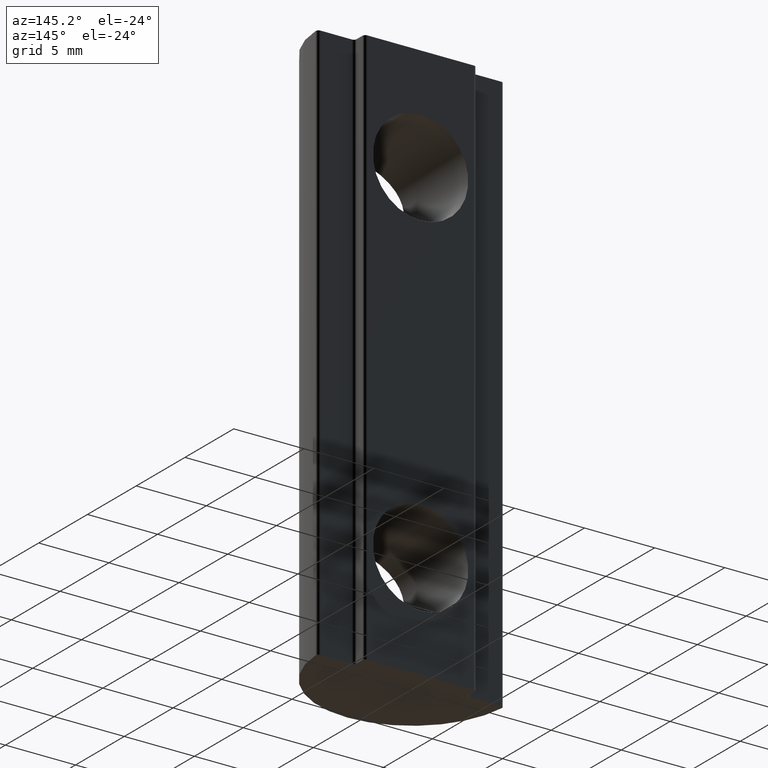
[diagram: clean part render]
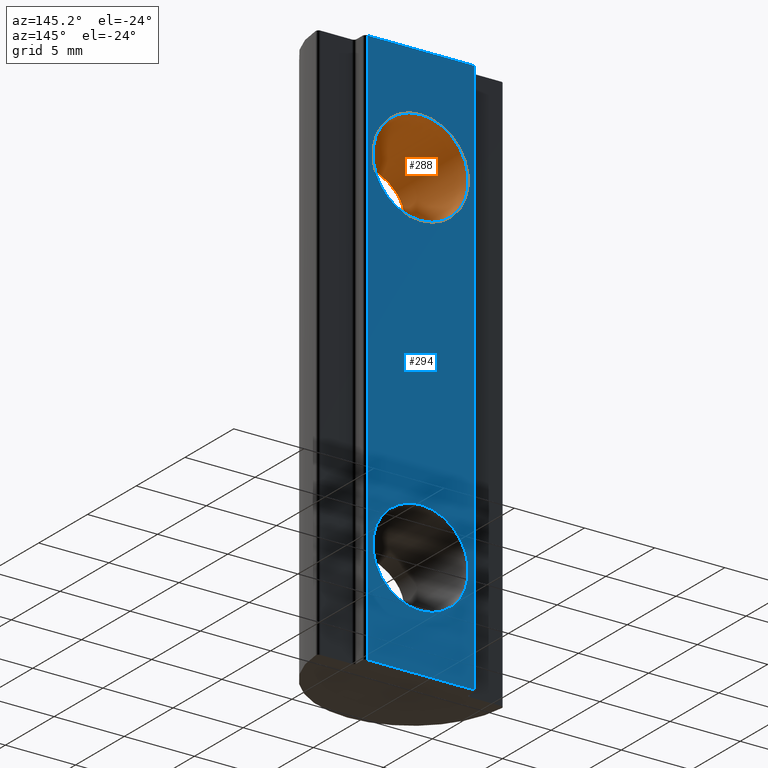
[diagram: same view with the hole feature highlighted: cylindrical wall and planar end face, labeled with their STEP entity ids]
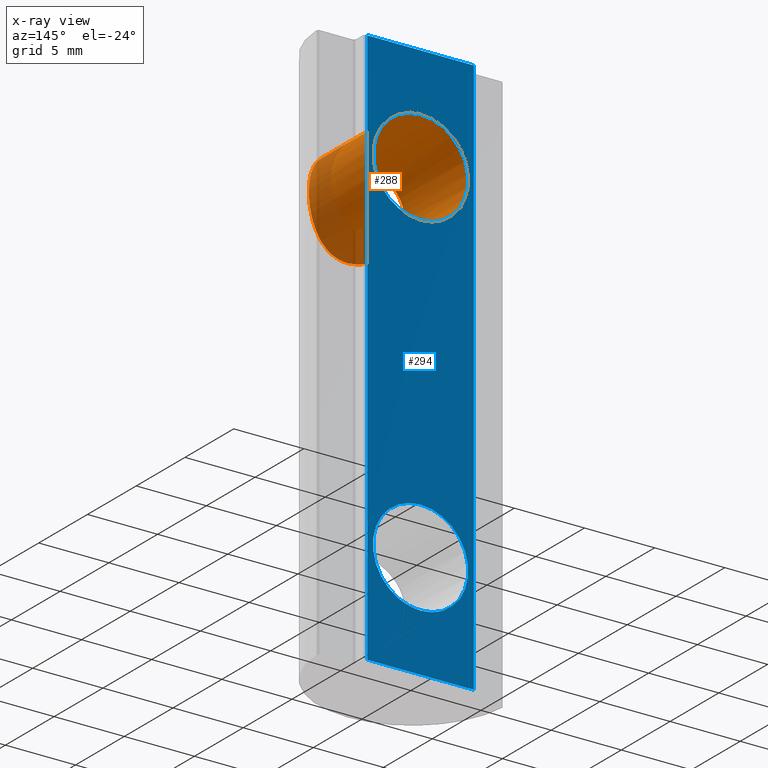
[diagram: x-ray of the same camera — body ghosted, the hole faces saturated]
A machine part, auxiliary view. The highlighted faces form one hole feature of diameter 6.8 mm: the cylindrical wall (entity #288, orange) and its adjacent planar end face (entity #294, blue) — they share a circular edge in the B-rep.
The next image is the same camera in x-ray (body ghosted, the hole faces saturated) — the bore reads through the body.
Wall:
#69=FACE_BOUND('',#108,.T.);
#75=CIRCLE('',#307,3.4);
#91=FACE_OUTER_BOUND('',#107,.T.);
#107=EDGE_LOOP('',(#199));
#108=EDGE_LOOP('',(#200));
#129=B_SPLINE_CURVE_WITH_KNOTS('',3,(#429,#430,#431,#432,#433,#434,#435,
#436,#437,#438,#439,#440,#441,#442,#443,#444,#445,#446,#447,#448,#449,#450,
#451,#452,#453,#454,#455,#456,#457,#458,#459,#460,#461,#462),
 .UNSPECIFIED.,.T.,.F.,(4,2,2,2,2,2,2,2,2,2,2,2,2,2,2,2,4),(0.,0.131027554840982,
0.262055109681964,0.392687474751269,0.523319839820575,0.65395220488988,
0.784584569959185,0.915612124800167,1.04663967964115,1.17766723448213,1.30869478932311,
1.43932715439242,1.56995951946172,1.70059188453103,1.83122424960033,1.96225180444132,
2.0932793592823),.UNSPECIFIED.);
#131=VERTEX_POINT('',#428);
#132=VERTEX_POINT('',#463);
#159=EDGE_CURVE('',#131,#131,#129,.T.);
#160=EDGE_CURVE('',#132,#132,#75,.T.);
#199=ORIENTED_EDGE('',*,*,#159,.F.);
#200=ORIENTED_EDGE('',*,*,#160,.T.);
#279=CYLINDRICAL_SURFACE('',#306,3.4);
#288=ADVANCED_FACE('',(#91,#69),#279,.F.);
#306=AXIS2_PLACEMENT_3D('',#427,#340,#341);
#307=AXIS2_PLACEMENT_3D('',#464,#342,#343);
#340=DIRECTION('center_axis',(0.,1.,0.));
#341=DIRECTION('ref_axis',(0.,0.,1.));
#342=DIRECTION('center_axis',(0.,1.,0.));
#343=DIRECTION('ref_axis',(0.,0.,1.));
#427=CARTESIAN_POINT('Origin',(0.,1.,32.5));
#428=CARTESIAN_POINT('',(4.16379924307195E-16,-6.5,29.1));
#429=CARTESIAN_POINT('Ctrl Pts',(3.4,-5.56539457715891,32.5));
#430=CARTESIAN_POINT('Ctrl Pts',(3.4,-5.56539457715891,32.0632414838634));
#431=CARTESIAN_POINT('Ctrl Pts',(3.31102816126517,-5.62077284062291,31.6046937341527));
#432=CARTESIAN_POINT('Ctrl Pts',(2.96191687936118,-5.8074427995085,30.7703947402309));
#433=CARTESIAN_POINT('Ctrl Pts',(2.70201157560893,-5.93486926136199,30.3936854635404));
#434=CARTESIAN_POINT('Ctrl Pts',(2.10721287184094,-6.16543677489532,29.7988867597724));
#435=CARTESIAN_POINT('Ctrl Pts',(1.73020592601123,-6.28515870979323,29.5383254414694));
#436=CARTESIAN_POINT('Ctrl Pts',(0.894584413487754,-6.4533337686477,29.1886788089965));
#437=CARTESIAN_POINT('Ctrl Pts',(0.435441216897685,-6.5,29.1));
#438=CARTESIAN_POINT('Ctrl Pts',(-0.435441216897684,-6.5,29.1));
#439=CARTESIAN_POINT('Ctrl Pts',(-0.894584413487754,-6.4533337686477,29.1886788089965));
#440=CARTESIAN_POINT('Ctrl Pts',(-1.73020592601123,-6.28515870979323,29.5383254414694));
#441=CARTESIAN_POINT('Ctrl Pts',(-2.10721287184094,-6.16543677489532,29.7988867597724));
#442=CARTESIAN_POINT('Ctrl Pts',(-2.70201157560893,-5.93486926136199,30.3936854635404));
#443=CARTESIAN_POINT('Ctrl Pts',(-2.96191687936118,-5.8074427995085,30.7703947402309));
#444=CARTESIAN_POINT('Ctrl Pts',(-3.31102816126517,-5.62077284062291,31.6046937341527));
#445=CARTESIAN_POINT('Ctrl Pts',(-3.4,-5.56539457715891,32.0632414838634));
#446=CARTESIAN_POINT('Ctrl Pts',(-3.4,-5.56539457715891,32.9367585161366));
#447=CARTESIAN_POINT('Ctrl Pts',(-3.31102816126517,-5.62077284062291,33.3953062658473));
#448=CARTESIAN_POINT('Ctrl Pts',(-2.96191687936118,-5.8074427995085,34.2296052597691));
#449=CARTESIAN_POINT('Ctrl Pts',(-2.70201157560893,-5.93486926136199,34.6063145364596));
#450=CARTESIAN_POINT('Ctrl Pts',(-2.10721287184095,-6.16543677489532,35.2011132402276));
#451=CARTESIAN_POINT('Ctrl Pts',(-1.73020592601124,-6.28515870979322,35.4616745585306));
#452=CARTESIAN_POINT('Ctrl Pts',(-0.894584413487756,-6.4533337686477,35.8113211910035));
#453=CARTESIAN_POINT('Ctrl Pts',(-0.435441216897686,-6.5,35.9));
#454=CARTESIAN_POINT('Ctrl Pts',(0.435441216897683,-6.5,35.9));
#455=CARTESIAN_POINT('Ctrl Pts',(0.894584413487753,-6.4533337686477,35.8113211910035));
#456=CARTESIAN_POINT('Ctrl Pts',(1.73020592601123,-6.28515870979323,35.4616745585306));
#457=CARTESIAN_POINT('Ctrl Pts',(2.10721287184094,-6.16543677489532,35.2011132402276));
#458=CARTESIAN_POINT('Ctrl Pts',(2.70201157560893,-5.93486926136199,34.6063145364596));
#459=CARTESIAN_POINT('Ctrl Pts',(2.96191687936118,-5.8074427995085,34.2296052597691));
#460=CARTESIAN_POINT('Ctrl Pts',(3.31102816126517,-5.62077284062291,33.3953062658473));
#461=CARTESIAN_POINT('Ctrl Pts',(3.4,-5.56539457715891,32.9367585161366));
#462=CARTESIAN_POINT('Ctrl Pts',(3.4,-5.56539457715891,32.5));
#463=CARTESIAN_POINT('',(0.,1.,35.9));
#464=CARTESIAN_POINT('Origin',(0.,1.,32.5));
End face:
#20=PLANE('',#318);
#36=LINE('',#539,#58);
#37=LINE('',#541,#59);
#38=LINE('',#543,#60);
#39=LINE('',#544,#61);
#58=VECTOR('',#377,7.6);
#59=VECTOR('',#378,40.);
#60=VECTOR('',#379,7.6);
#61=VECTOR('',#380,40.);
#73=FACE_BOUND('',#118,.T.);
#74=FACE_BOUND('',#119,.T.);
#75=CIRCLE('',#307,3.4);
#76=CIRCLE('',#309,3.4);
#97=FACE_OUTER_BOUND('',#117,.T.);
#117=EDGE_LOOP('',(#221,#222,#223,#224));
#118=EDGE_LOOP('',(#225));
#119=EDGE_LOOP('',(#226));
#132=VERTEX_POINT('',#463);
#134=VERTEX_POINT('',#501);
#149=VERTEX_POINT('',#537);
#150=VERTEX_POINT('',#538);
#151=VERTEX_POINT('',#540);
#152=VERTEX_POINT('',#542);
#160=EDGE_CURVE('',#132,#132,#75,.T.);
#162=EDGE_CURVE('',#134,#134,#76,.T.);
#178=EDGE_CURVE('',#149,#150,#36,.T.);
#179=EDGE_CURVE('',#150,#151,#37,.T.);
#180=EDGE_CURVE('',#152,#151,#38,.T.);
#181=EDGE_CURVE('',#152,#149,#39,.T.);
#221=ORIENTED_EDGE('',*,*,#178,.T.);
#222=ORIENTED_EDGE('',*,*,#179,.T.);
#223=ORIENTED_EDGE('',*,*,#180,.F.);
#224=ORIENTED_EDGE('',*,*,#181,.T.);
#225=ORIENTED_EDGE('',*,*,#160,.F.);
#226=ORIENTED_EDGE('',*,*,#162,.F.);
#294=ADVANCED_FACE('',(#97,#73,#74),#20,.F.);
#307=AXIS2_PLACEMENT_3D('',#464,#342,#343);
#309=AXIS2_PLACEMENT_3D('',#502,#346,#347);
#318=AXIS2_PLACEMENT_3D('',#536,#375,#376);
#342=DIRECTION('center_axis',(0.,1.,0.));
#343=DIRECTION('ref_axis',(0.,0.,1.));
#346=DIRECTION('center_axis',(0.,1.,0.));
#347=DIRECTION('ref_axis',(0.,0.,1.));
#375=DIRECTION('center_axis',(0.,-1.,0.));
#376=DIRECTION('ref_axis',(0.,0.,-1.));
#377=DIRECTION('',(-1.,0.,0.));
#378=DIRECTION('',(0.,0.,1.));
#379=DIRECTION('',(-1.,0.,0.));
#380=DIRECTION('',(0.,0.,-1.));
#463=CARTESIAN_POINT('',(0.,1.,35.9));
#464=CARTESIAN_POINT('Origin',(0.,1.,32.5));
#501=CARTESIAN_POINT('',(0.,1.,10.9));
#502=CARTESIAN_POINT('Origin',(0.,1.,7.5));
#536=CARTESIAN_POINT('Origin',(-4.,1.,40.));
#537=CARTESIAN_POINT('',(3.8,1.,0.));
#538=CARTESIAN_POINT('',(-3.8,1.,0.));
#539=CARTESIAN_POINT('',(-4.,1.,0.));
#540=CARTESIAN_POINT('',(-3.8,1.,40.));
#541=CARTESIAN_POINT('',(-3.8,1.,40.));
#542=CARTESIAN_POINT('',(3.8,1.,40.));
#543=CARTESIAN_POINT('',(-4.,1.,40.));
#544=CARTESIAN_POINT('',(3.8,1.,40.));